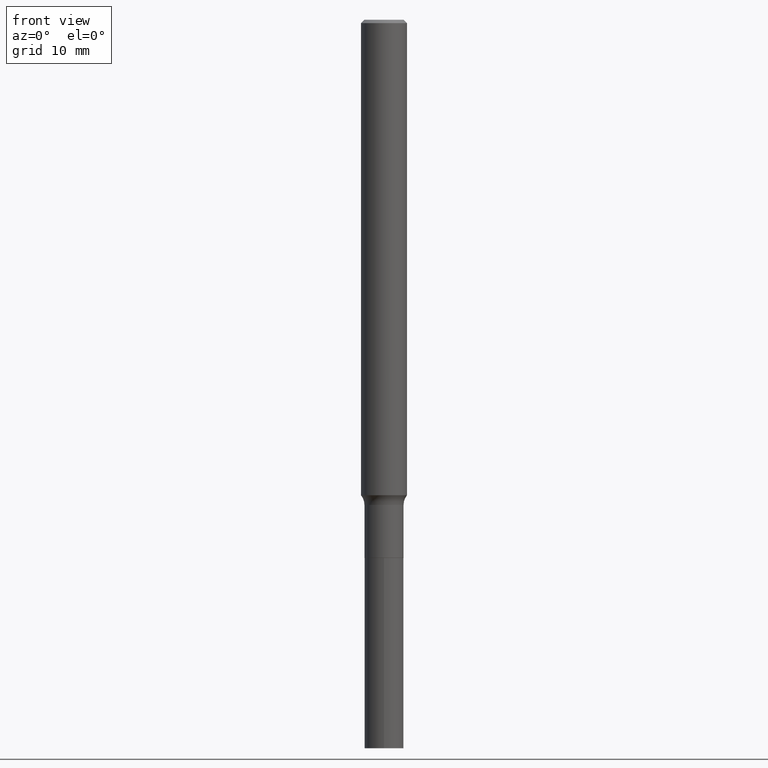
[diagram: clean part render]
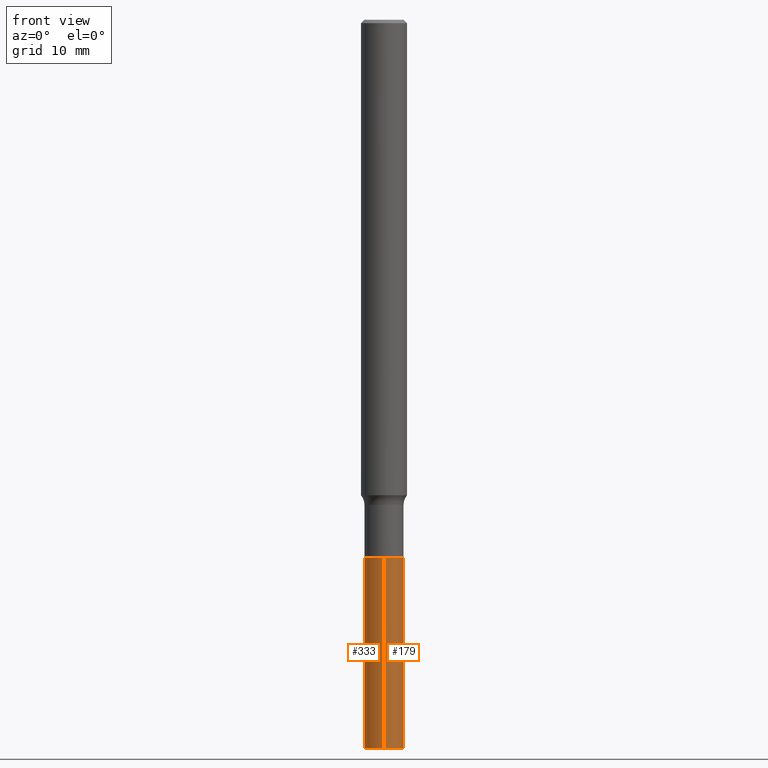
[diagram: same view with one multi-face feature highlighted, each face labeled with its STEP entity id]
A machine part, front view. The highlighted faces form ONE feature: a constant-radius fillet chain: 2 tangent blend faces with common blend radius 2.5502 mm. The faces share edges in the B-rep.
Their STEP definitions:
[1] entity #179 (Cylinder):
#1 = ORIENTED_EDGE ( 'NONE', *, *, #145, .F. ) ;
#16 = CARTESIAN_POINT ( 'NONE',  ( 6.757319405250769322E-29, -9.647661235491380709E-15, -2.763200000000000323 ) ) ;
#20 = CYLINDRICAL_SURFACE ( 'NONE', #222, 0.1004000000000000031 ) ;
#21 = VERTEX_POINT ( 'NONE', #72 ) ;
#24 = CARTESIAN_POINT ( 'NONE',  ( -7.010894528396336292E-16, -0.1004000000000096482, -2.763199999999999434 ) ) ;
#26 = AXIS2_PLACEMENT_3D ( 'NONE', #418, #270, #374 ) ;
#30 = CARTESIAN_POINT ( 'NONE',  ( 9.139920139182118548E-29, -1.306832199932537301E-14, -3.740200000000000635 ) ) ;
#32 = DIRECTION ( 'NONE',  ( -2.438690618148768155E-29, 3.501188089901729576E-15, 1.000000000000000000 ) ) ;
#42 = EDGE_LOOP ( 'NONE', ( #109, #398, #1, #152 ) ) ;
#59 = CARTESIAN_POINT ( 'NONE',  ( 7.133849067032322153E-16, 0.1003999999999903719, -2.763200000000000767 ) ) ;
#72 = CARTESIAN_POINT ( 'NONE',  ( -7.010894528396336292E-16, -0.1004000000000096482, -2.763199999999999434 ) ) ;
#77 = VECTOR ( 'NONE', #205, 39.37007874015748143 ) ;
#86 = DIRECTION ( 'NONE',  ( -6.982962677686266711E-15, -1.000000000000000000, 5.441928274231599754E-15 ) ) ;
#93 = CARTESIAN_POINT ( 'NONE',  ( 7.133849067032080565E-16, 0.1003999999999903581, -2.763200000000000767 ) ) ;
#109 = ORIENTED_EDGE ( 'NONE', *, *, #310, .T. ) ;
#118 = VERTEX_POINT ( 'NONE', #59 ) ;
#132 = AXIS2_PLACEMENT_3D ( 'NONE', #30, #32, #174 ) ;
#134 = VERTEX_POINT ( 'NONE', #341 ) ;
#144 = VECTOR ( 'NONE', #336, 39.37007874015748143 ) ;
#145 = EDGE_CURVE ( 'NONE', #21, #118, #168, .T. ) ;
#152 = ORIENTED_EDGE ( 'NONE', *, *, #305, .F. ) ;
#154 = FACE_OUTER_BOUND ( 'NONE', #42, .T. ) ;
#167 = EDGE_CURVE ( 'NONE', #134, #118, #235, .T. ) ;
#168 = CIRCLE ( 'NONE', #26, 0.1004000000000000031 ) ;
#174 = DIRECTION ( 'NONE',  ( -6.982962677686266711E-15, -1.000000000000000000, 5.441928274231598965E-15 ) ) ;
#179 = ADVANCED_FACE ( 'NONE', ( #154 ), #20, .T. ) ;
#192 = CIRCLE ( 'NONE', #132, 0.1004000000000000170 ) ;
#205 = DIRECTION ( 'NONE',  ( -2.438690618148768155E-29, 3.501188089901729576E-15, 1.000000000000000000 ) ) ;
#222 = AXIS2_PLACEMENT_3D ( 'NONE', #16, #344, #86 ) ;
#235 = LINE ( 'NONE', #93, #144 ) ;
#270 = DIRECTION ( 'NONE',  ( -2.438690618148768155E-29, 3.501188089901729576E-15, 1.000000000000000000 ) ) ;
#288 = CARTESIAN_POINT ( 'NONE',  ( -7.010894528396099633E-16, -0.1004000000000130899, -3.740200000000000191 ) ) ;
#305 = EDGE_CURVE ( 'NONE', #391, #21, #352, .T. ) ;
#310 = EDGE_CURVE ( 'NONE', #391, #134, #192, .T. ) ;
#336 = DIRECTION ( 'NONE',  ( -2.438690618148768155E-29, 3.501188089901729576E-15, 1.000000000000000000 ) ) ;
#341 = CARTESIAN_POINT ( 'NONE',  ( 7.133849067032199880E-16, 0.1003999999999869580, -3.740200000000001079 ) ) ;
#344 = DIRECTION ( 'NONE',  ( -2.438690618148768155E-29, 3.501188089901729576E-15, 1.000000000000000000 ) ) ;
#352 = LINE ( 'NONE', #24, #77 ) ;
#374 = DIRECTION ( 'NONE',  ( -6.982962677686266711E-15, -1.000000000000000000, 5.441928274231599754E-15 ) ) ;
#391 = VERTEX_POINT ( 'NONE', #288 ) ;
#398 = ORIENTED_EDGE ( 'NONE', *, *, #167, .T. ) ;
#418 = CARTESIAN_POINT ( 'NONE',  ( 6.757319405250769322E-29, -9.647661235491380709E-15, -2.763200000000000323 ) ) ;
[2] entity #333 (Cylinder):
#14 = EDGE_CURVE ( 'NONE', #118, #21, #308, .T. ) ;
#21 = VERTEX_POINT ( 'NONE', #72 ) ;
#24 = CARTESIAN_POINT ( 'NONE',  ( -7.010894528396336292E-16, -0.1004000000000096482, -2.763199999999999434 ) ) ;
#33 = AXIS2_PLACEMENT_3D ( 'NONE', #198, #334, #408 ) ;
#36 = DIRECTION ( 'NONE',  ( -2.438690618148768155E-29, 3.501188089901729576E-15, 1.000000000000000000 ) ) ;
#45 = ORIENTED_EDGE ( 'NONE', *, *, #305, .T. ) ;
#59 = CARTESIAN_POINT ( 'NONE',  ( 7.133849067032322153E-16, 0.1003999999999903719, -2.763200000000000767 ) ) ;
#72 = CARTESIAN_POINT ( 'NONE',  ( -7.010894528396336292E-16, -0.1004000000000096482, -2.763199999999999434 ) ) ;
#77 = VECTOR ( 'NONE', #205, 39.37007874015748143 ) ;
#87 = ORIENTED_EDGE ( 'NONE', *, *, #167, .F. ) ;
#93 = CARTESIAN_POINT ( 'NONE',  ( 7.133849067032080565E-16, 0.1003999999999903581, -2.763200000000000767 ) ) ;
#97 = CARTESIAN_POINT ( 'NONE',  ( 6.757319405250769322E-29, -9.647661235491380709E-15, -2.763200000000000323 ) ) ;
#103 = DIRECTION ( 'NONE',  ( -6.982962677686266711E-15, -1.000000000000000000, 5.441928274231599754E-15 ) ) ;
#110 = EDGE_CURVE ( 'NONE', #134, #391, #245, .T. ) ;
#118 = VERTEX_POINT ( 'NONE', #59 ) ;
#134 = VERTEX_POINT ( 'NONE', #341 ) ;
#136 = FACE_OUTER_BOUND ( 'NONE', #348, .T. ) ;
#144 = VECTOR ( 'NONE', #336, 39.37007874015748143 ) ;
#167 = EDGE_CURVE ( 'NONE', #134, #118, #235, .T. ) ;
#198 = CARTESIAN_POINT ( 'NONE',  ( 9.139920139182118548E-29, -1.306832199932537301E-14, -3.740200000000000635 ) ) ;
#205 = DIRECTION ( 'NONE',  ( -2.438690618148768155E-29, 3.501188089901729576E-15, 1.000000000000000000 ) ) ;
#210 = DIRECTION ( 'NONE',  ( -2.438690618148768155E-29, 3.501188089901729576E-15, 1.000000000000000000 ) ) ;
#233 = ORIENTED_EDGE ( 'NONE', *, *, #14, .F. ) ;
#235 = LINE ( 'NONE', #93, #144 ) ;
#245 = CIRCLE ( 'NONE', #33, 0.1004000000000000170 ) ;
#280 = AXIS2_PLACEMENT_3D ( 'NONE', #97, #210, #103 ) ;
#288 = CARTESIAN_POINT ( 'NONE',  ( -7.010894528396099633E-16, -0.1004000000000130899, -3.740200000000000191 ) ) ;
#305 = EDGE_CURVE ( 'NONE', #391, #21, #352, .T. ) ;
#308 = CIRCLE ( 'NONE', #427, 0.1004000000000000031 ) ;
#332 = ORIENTED_EDGE ( 'NONE', *, *, #110, .T. ) ;
#333 = ADVANCED_FACE ( 'NONE', ( #136 ), #426, .T. ) ;
#334 = DIRECTION ( 'NONE',  ( -2.438690618148768155E-29, 3.501188089901729576E-15, 1.000000000000000000 ) ) ;
#336 = DIRECTION ( 'NONE',  ( -2.438690618148768155E-29, 3.501188089901729576E-15, 1.000000000000000000 ) ) ;
#341 = CARTESIAN_POINT ( 'NONE',  ( 7.133849067032199880E-16, 0.1003999999999869580, -3.740200000000001079 ) ) ;
#348 = EDGE_LOOP ( 'NONE', ( #87, #332, #45, #233 ) ) ;
#352 = LINE ( 'NONE', #24, #77 ) ;
#357 = DIRECTION ( 'NONE',  ( -6.982962677686266711E-15, -1.000000000000000000, 5.441928274231599754E-15 ) ) ;
#391 = VERTEX_POINT ( 'NONE', #288 ) ;
#408 = DIRECTION ( 'NONE',  ( -6.982962677686266711E-15, -1.000000000000000000, 5.441928274231598965E-15 ) ) ;
#426 = CYLINDRICAL_SURFACE ( 'NONE', #280, 0.1004000000000000031 ) ;
#427 = AXIS2_PLACEMENT_3D ( 'NONE', #440, #36, #357 ) ;
#440 = CARTESIAN_POINT ( 'NONE',  ( 6.757319405250769322E-29, -9.647661235491380709E-15, -2.763200000000000323 ) ) ;